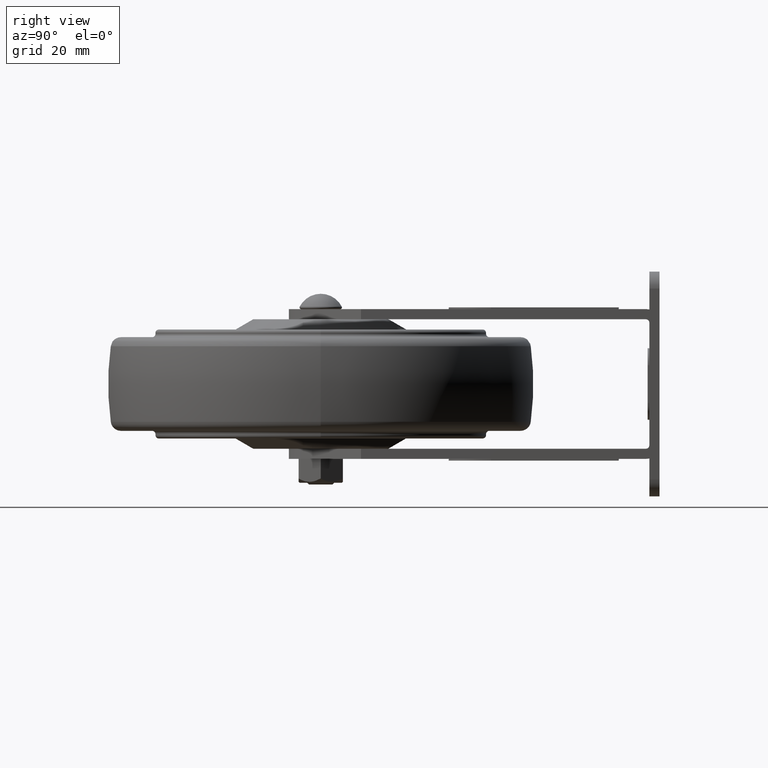
[diagram: clean part render]
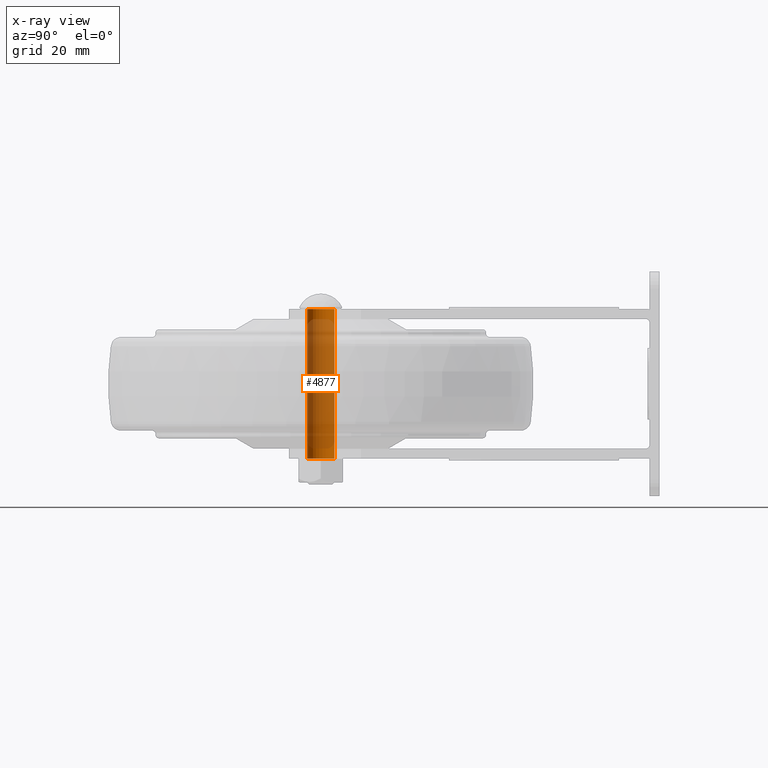
[diagram: x-ray — body ghosted, one internal face saturated and labeled with its STEP entity id]
A machine part, right view, then the same camera in x-ray: the body is ghosted and one INTERNAL B-rep face — a face not visible from any outside direction — is saturated and labeled: STEP entity #4877.
In plain terms, the highlighted cylindrical surface (edge-blend (fillet) strip) has radius 4 mm, axis along (-0, 0, -1).
Its self-contained STEP definition (entity closure, byte-faithful):
#28 = AXIS2_PLACEMENT_3D ( 'NONE', #4144, #1469, #4863 ) ;
#167 = DIRECTION ( 'NONE',  ( 0.000000000000000000, 1.000000000000000000, 0.000000000000000000 ) ) ;
#268 = CARTESIAN_POINT ( 'NONE',  ( 0.000000000000000000, 3.999999999999992450, 21.99999999999999289 ) ) ;
#312 = EDGE_CURVE ( 'NONE', #1615, #3229, #2536, .T. ) ;
#344 = EDGE_LOOP ( 'NONE', ( #913, #649, #2442, #4243 ) ) ;
#549 = DIRECTION ( 'NONE',  ( -0.000000000000000000, 1.260956889968208019E-16, -1.000000000000000000 ) ) ;
#649 = ORIENTED_EDGE ( 'NONE', *, *, #1980, .T. ) ;
#903 = CIRCLE ( 'NONE', #2796, 3.999999999999998224 ) ;
#909 = CYLINDRICAL_SURFACE ( 'NONE', #3316, 3.999999999999996447 ) ;
#913 = ORIENTED_EDGE ( 'NONE', *, *, #2592, .F. ) ;
#1070 = CARTESIAN_POINT ( 'NONE',  ( 4.898587196589414801E-16, -4.000000000000004441, 21.99999999999999289 ) ) ;
#1469 = DIRECTION ( 'NONE',  ( -0.000000000000000000, 1.196951633769521503E-16, -1.000000000000000000 ) ) ;
#1615 = VERTEX_POINT ( 'NONE', #268 ) ;
#1678 = LINE ( 'NONE', #4410, #3813 ) ;
#1744 = CARTESIAN_POINT ( 'NONE',  ( 4.898587196589408884E-16, -3.999999999999997335, -22.00000000000001066 ) ) ;
#1980 = EDGE_CURVE ( 'NONE', #2739, #1615, #903, .T. ) ;
#2080 = CIRCLE ( 'NONE', #28, 3.999999999999996447 ) ;
#2442 = ORIENTED_EDGE ( 'NONE', *, *, #312, .T. ) ;
#2536 = LINE ( 'NONE', #4022, #3089 ) ;
#2592 = EDGE_CURVE ( 'NONE', #2739, #4113, #1678, .T. ) ;
#2739 = VERTEX_POINT ( 'NONE', #1070 ) ;
#2796 = AXIS2_PLACEMENT_3D ( 'NONE', #4788, #549, #3175 ) ;
#2839 = CARTESIAN_POINT ( 'NONE',  ( 0.000000000000000000, 1.224646799147358138E-16, -29.50000000000000000 ) ) ;
#3089 = VECTOR ( 'NONE', #4049, 1000.000000000000000 ) ;
#3175 = DIRECTION ( 'NONE',  ( 0.000000000000000000, 1.000000000000000000, 0.000000000000000000 ) ) ;
#3222 = DIRECTION ( 'NONE',  ( -0.000000000000000000, 1.260956889968208019E-16, -1.000000000000000000 ) ) ;
#3229 = VERTEX_POINT ( 'NONE', #4317 ) ;
#3316 = AXIS2_PLACEMENT_3D ( 'NONE', #2839, #4381, #167 ) ;
#3440 = EDGE_CURVE ( 'NONE', #4113, #3229, #2080, .T. ) ;
#3579 = FACE_OUTER_BOUND ( 'NONE', #344, .T. ) ;
#3813 = VECTOR ( 'NONE', #3222, 1000.000000000000000 ) ;
#4022 = CARTESIAN_POINT ( 'NONE',  ( 0.000000000000000000, 3.999999999999996447, -29.50000000000000000 ) ) ;
#4049 = DIRECTION ( 'NONE',  ( -0.000000000000000000, 1.260956889968208019E-16, -1.000000000000000000 ) ) ;
#4113 = VERTEX_POINT ( 'NONE', #1744 ) ;
#4144 = CARTESIAN_POINT ( 'NONE',  ( 0.000000000000000000, -8.232529875614189063E-16, -22.00000000000001066 ) ) ;
#4243 = ORIENTED_EDGE ( 'NONE', *, *, #3440, .F. ) ;
#4317 = CARTESIAN_POINT ( 'NONE',  ( 0.000000000000000000, 3.999999999999995559, -22.00000000000001066 ) ) ;
#4381 = DIRECTION ( 'NONE',  ( -0.000000000000000000, 1.260956889968208019E-16, -1.000000000000000000 ) ) ;
#4410 = CARTESIAN_POINT ( 'NONE',  ( 4.898587196589408884E-16, -3.999999999999996447, -29.50000000000000000 ) ) ;
#4788 = CARTESIAN_POINT ( 'NONE',  ( 0.000000000000000000, -6.371463303421534091E-15, 21.99999999999999289 ) ) ;
#4863 = DIRECTION ( 'NONE',  ( 0.000000000000000000, -1.000000000000000000, 0.000000000000000000 ) ) ;
#4877 = ADVANCED_FACE ( 'NONE', ( #3579 ), #909, .T. ) ;